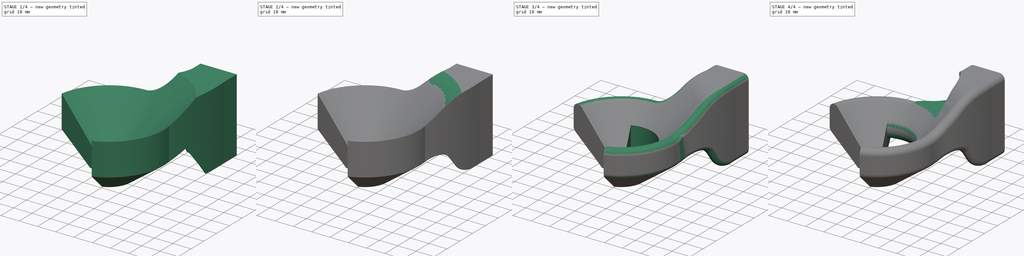
[diagram: build sequence overview — one tinted view per stage of 4, left to right]
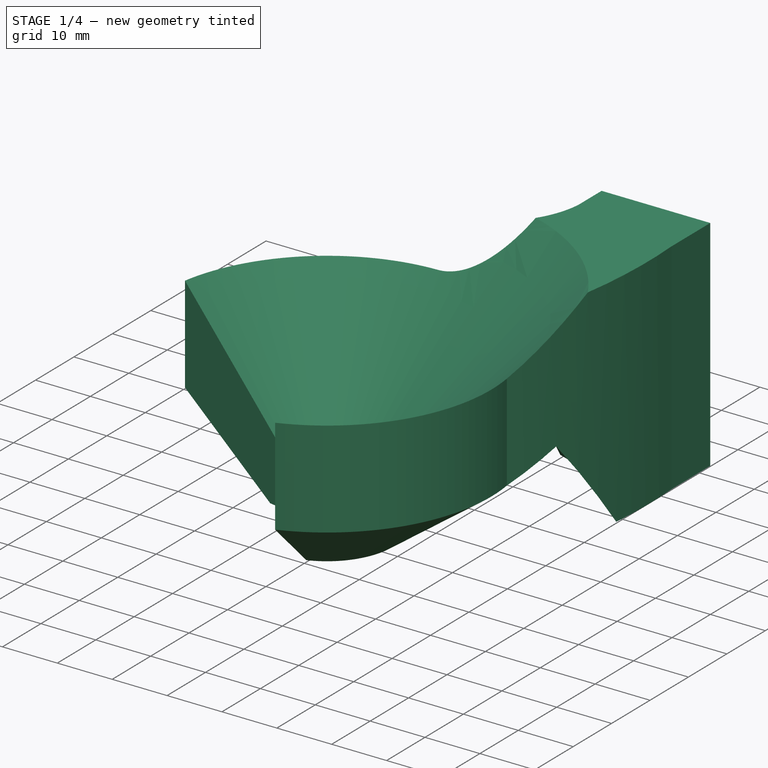
[diagram: stage 1 of 4 — iso view after this stage's code; geometry added in this stage tinted green]
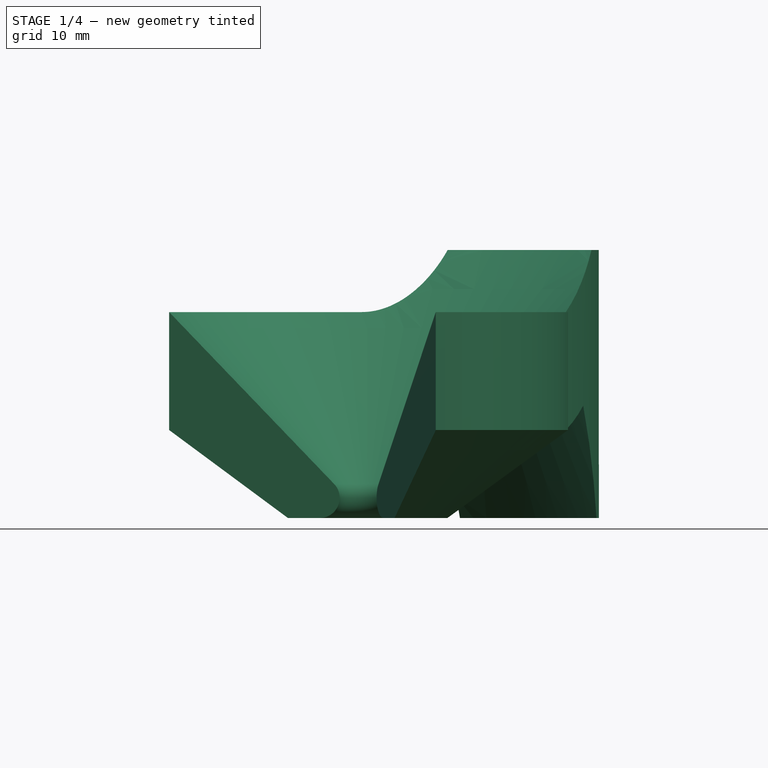
[diagram: stage 1 of 4 — front view after this stage's code; geometry added in this stage tinted green]
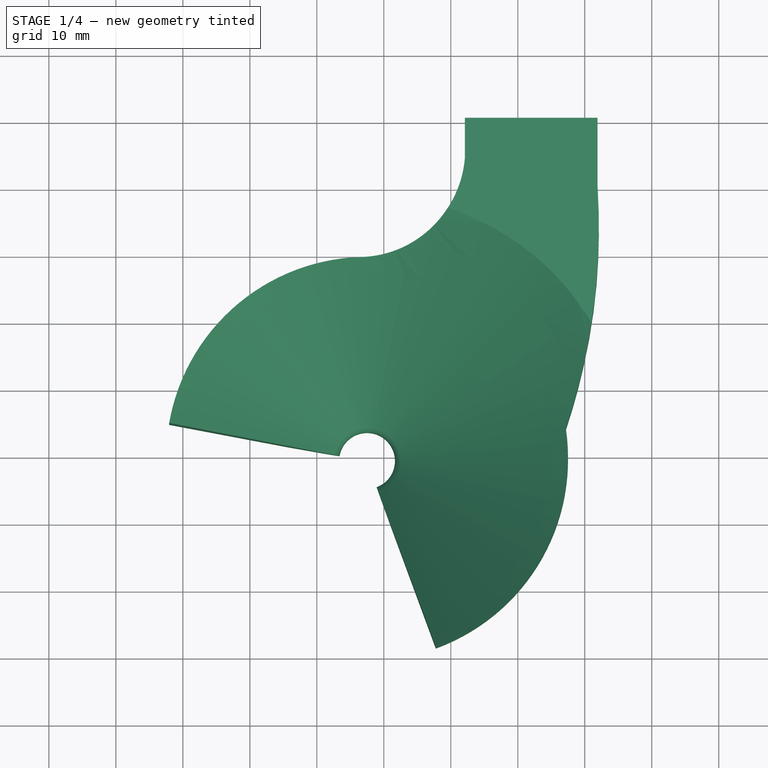
[diagram: stage 1 of 4 — top view after this stage's code; geometry added in this stage tinted green]
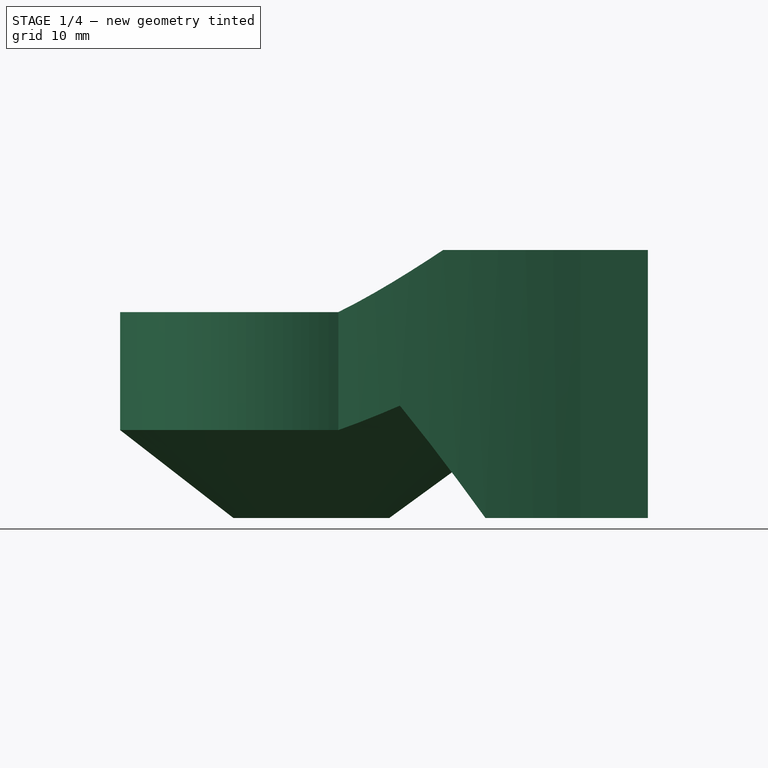
[diagram: stage 1 of 4 — right view after this stage's code; geometry added in this stage tinted green]
FCSTD DOCUMENT  (FreeCAD 0.19R22808 (Git))
Label: 999
License: All rights reserved
LicenseURL: http://en.wikipedia.org/wiki/All_rights_reserved
objects: Sketcher::SketchObject×10, PartDesign::Fillet×8, App::DocumentObjectGroup×2, PartDesign::Pocket×2, PartDesign::CoordinateSystem×1, App::FeaturePython×1, PartDesign::Line×1, PartDesign::Pad×1, PartDesign::Groove×1, PartDesign::Body×1, App::Part×1
note: 37 computed .brp shape members not serialized (recipe doc carries the construction recipe); baked Part::Feature solids carry a one-line shape summary decoded from their .brp

FEATURE [App::DocumentObjectGroup] Parts
FEATURE [PartDesign::CoordinateSystem] LCS_Origin
  AttacherType = Attacher::AttachEngine3D
  MapMode = 2
  Support = -> [X_Axis]
FEATURE [App::DocumentObjectGroup] Constraints
FEATURE [App::FeaturePython] Variables  # WARN: FeaturePython — macro-defined, semantics opaque (R4)
FEATURE [PartDesign::Line] DatumLine
  AttacherType = Attacher::AttachEngineLine
  Length = 20
  Placement = pos=(-12.5,-70.5,0) rot=(0,0,1;0rad)
  ResizeMode = 0
FEATURE [Sketcher::SketchObject] Sketch049  label="START_SUP"
  AttachmentOffset = pos=(0,0,19.9) rot=(0,0,1;0rad)
  MapMode = 5
  Placement = pos=(0,-19.9,-4.4e-15) rot=(1,0,0;1.5708rad)
  Support = -> [XZ_Plane005]
  sketch-geometry (16):
    g0: LineSegment StartX=5.1 StartY=-2 StartZ=0 EndX=18.9 EndY=-2 EndZ=0
    g1: LineSegment StartX=19.9 StartY=-3 StartZ=0 EndX=19.9 EndY=-37 EndZ=0
    g2: LineSegment StartX=18.9 StartY=-38 StartZ=0 EndX=5.1 EndY=-38 EndZ=0
    g3: LineSegment StartX=4.1 StartY=-37 StartZ=0 EndX=4.1 EndY=-3 EndZ=0
    g4: LineSegment StartX=6.2 StartY=-3.1 StartZ=0 EndX=17.8 EndY=-3.1 EndZ=0
    g5: LineSegment StartX=18.8 StartY=-4.1 StartZ=0 EndX=18.8 EndY=-35.9 EndZ=0
    g6: LineSegment StartX=17.8 StartY=-36.9 StartZ=0 EndX=6.2 EndY=-36.9 EndZ=0
    g7: LineSegment StartX=5.2 StartY=-35.9 StartZ=0 EndX=5.2 EndY=-4.1 EndZ=0
    g8: ArcOfCircle CenterX=5.1 CenterY=-37 CenterZ=0 NormalX=0 NormalY=0 NormalZ=1 AngleXU=0 Radius=1 StartAngle=3.14159 EndAngle=4.71239
    g9: ArcOfCircle CenterX=6.2 CenterY=-35.9 CenterZ=0 NormalX=0 NormalY=0 NormalZ=1 AngleXU=0 Radius=1 StartAngle=3.14159 EndAngle=4.71239
    g10: ArcOfCircle CenterX=17.8 CenterY=-35.9 CenterZ=0 NormalX=0 NormalY=0 NormalZ=1 AngleXU=0 Radius=1 StartAngle=4.71239 EndAngle=6.28319
    g11: ArcOfCircle CenterX=18.9 CenterY=-37 CenterZ=0 NormalX=0 NormalY=0 NormalZ=1 AngleXU=0 Radius=1 StartAngle=4.71239 EndAngle=6.28319
    g12: ArcOfCircle CenterX=5.1 CenterY=-3 CenterZ=0 NormalX=0 NormalY=0 NormalZ=1 AngleXU=0 Radius=1 StartAngle=1.5708 EndAngle=3.14159
    g13: ArcOfCircle CenterX=18.9 CenterY=-3 CenterZ=0 NormalX=0 NormalY=0 NormalZ=1 AngleXU=0 Radius=1 StartAngle=0 EndAngle=1.5708
    g14: ArcOfCircle CenterX=6.2 CenterY=-4.1 CenterZ=0 NormalX=0 NormalY=0 NormalZ=1 AngleXU=0 Radius=1 StartAngle=1.5708 EndAngle=3.14159
    g15: ArcOfCircle CenterX=17.8 CenterY=-4.1 CenterZ=0 NormalX=0 NormalY=0 NormalZ=1 AngleXU=0 Radius=1 StartAngle=0 EndAngle=1.5708
  constraints (40):
    c: Horizontal(g0)
    c: Horizontal(g2)
    c: Vertical(g1)
    c: Vertical(g3)
    c: Horizontal(g4)
    c: Horizontal(g6)
    c: Vertical(g5)
    c: Vertical(g7)
    c: Tangent(g3,g8) = 1.5708
    c: Tangent(g2,g8) = 1.5708
    c: Tangent(g6,g9) = 1.5708
    c: Tangent(g7,g9) = 1.5708
    c: Tangent(g6,g10) = 1.5708
    c: Tangent(g5,g10) = 1.5708
    c: Tangent(g1,g11) = 1.5708
    c: Tangent(g2,g11) = 1.5708
    c: Tangent(g0,g12) = 1.5708
    c: Tangent(g3,g12) = 1.5708
    c: Tangent(g0,g13) = 1.5708
    c: Tangent(g1,g13) = 1.5708
    c: DistanceX(g3,g1) = 15.8
    c: DistanceX(g3) = 4.1
    c: DistanceY(g0) = -2
    c: DistanceY(g2,g0) = 36
    c: DistanceX(g3,g7) = 1.1
    c: DistanceY(g2,g6) = 1.1
    c: Tangent(g4,g14) = 1.5708
    c: Tangent(g7,g14) = 1.5708
    c: Tangent(g4,g15) = 1.5708
    c: Tangent(g5,g15) = 1.5708
    c: DistanceY(g4,g0) = 1.1
    c: DistanceX(g5,g1) = 1.1
    c: Radius(g12) = 1
    c: Equal(g12,g13)
    c: Equal(g12,g8)
    c: Equal(g12,g11)
    c: Radius(g9) = 1
    c: Equal(g9,g10)
    c: Equal(g9,g14)
    c: Equal(g9,g15)
FEATURE [Sketcher::SketchObject] Sketch050  label="START_CUT"
  AttachmentOffset = pos=(0,0,19.9) rot=(0,0,1;0rad)
  MapMode = 5
  Placement = pos=(0,-19.9,-4.4e-15) rot=(1,0,0;1.5708rad)
  Support = -> [XZ_Plane005]
  sketch-geometry (16):
    g0: LineSegment StartX=5.1 StartY=-2 StartZ=0 EndX=18.9 EndY=-2 EndZ=0
    g1: LineSegment StartX=19.9 StartY=-3 StartZ=0 EndX=19.9 EndY=-37 EndZ=0
    g2: LineSegment StartX=18.9 StartY=-38 StartZ=0 EndX=5.1 EndY=-38 EndZ=0
    g3: LineSegment StartX=4.1 StartY=-37 StartZ=0 EndX=4.1 EndY=-3 EndZ=0
    g4: LineSegment StartX=5.2 StartY=-2.1 StartZ=0 EndX=18.8 EndY=-2.1 EndZ=0
    g5: LineSegment StartX=19.8 StartY=-3.1 StartZ=0 EndX=19.8 EndY=-36.9 EndZ=0
    g6: LineSegment StartX=18.8 StartY=-37.9 StartZ=0 EndX=5.2 EndY=-37.9 EndZ=0
    g7: LineSegment StartX=4.2 StartY=-36.9 StartZ=0 EndX=4.2 EndY=-3.1 EndZ=0
    g8: ArcOfCircle CenterX=5.1 CenterY=-37 CenterZ=0 NormalX=0 NormalY=0 NormalZ=1 AngleXU=0 Radius=1 StartAngle=3.14159 EndAngle=4.71239
    g9: ArcOfCircle CenterX=5.2 CenterY=-36.9 CenterZ=0 NormalX=0 NormalY=0 NormalZ=1 AngleXU=0 Radius=1 StartAngle=3.14159 EndAngle=4.71239
    g10: ArcOfCircle CenterX=18.8 CenterY=-36.9 CenterZ=0 NormalX=0 NormalY=0 NormalZ=1 AngleXU=0 Radius=1 StartAngle=4.71239 EndAngle=6.28319
    g11: ArcOfCircle CenterX=18.9 CenterY=-37 CenterZ=0 NormalX=0 NormalY=0 NormalZ=1 AngleXU=0 Radius=1 StartAngle=4.71239 EndAngle=6.28319
    g12: ArcOfCircle CenterX=5.1 CenterY=-3 CenterZ=0 NormalX=0 NormalY=0 NormalZ=1 AngleXU=0 Radius=1 StartAngle=1.5708 EndAngle=3.14159
    g13: ArcOfCircle CenterX=18.9 CenterY=-3 CenterZ=0 NormalX=0 NormalY=0 NormalZ=1 AngleXU=0 Radius=1 StartAngle=1e-16 EndAngle=1.5708
    g14: ArcOfCircle CenterX=5.2 CenterY=-3.1 CenterZ=0 NormalX=0 NormalY=0 NormalZ=1 AngleXU=0 Radius=1 StartAngle=1.5708 EndAngle=3.14159
    g15: ArcOfCircle CenterX=18.8 CenterY=-3.1 CenterZ=0 NormalX=0 NormalY=0 NormalZ=1 AngleXU=0 Radius=1 StartAngle=0 EndAngle=1.5708
  constraints (40):
    c: Horizontal(g0)
    c: Horizontal(g2)
    c: Vertical(g1)
    c: Vertical(g3)
    c: Horizontal(g4)
    c: Horizontal(g6)
    c: Vertical(g5)
    c: Vertical(g7)
    c: Tangent(g3,g8) = 1.5708
    c: Tangent(g2,g8) = 1.5708
    c: Tangent(g6,g9) = 1.5708
    c: Tangent(g7,g9) = 1.5708
    c: Tangent(g6,g10) = 1.5708
    c: Tangent(g5,g10) = 1.5708
    c: Tangent(g1,g11) = 1.5708
    c: Tangent(g2,g11) = 1.5708
    c: Tangent(g0,g12) = 1.5708
    c: Tangent(g3,g12) = 1.5708
    c: Tangent(g0,g13) = 1.5708
    c: Tangent(g1,g13) = 1.5708
    c: DistanceX(g3,g1) = 15.8
    c: DistanceX(g3) = 4.1
    c: DistanceY(g0) = -2
    c: DistanceY(g2,g0) = 36
    c: DistanceX(g3,g7) = 0.1
    c: DistanceY(g2,g6) = 0.1
    c: Tangent(g4,g14) = 1.5708
    c: Tangent(g7,g14) = 1.5708
    c: Tangent(g4,g15) = 1.5708
    c: Tangent(g5,g15) = 1.5708
    c: DistanceY(g4,g0) = 0.1
    c: DistanceX(g5,g1) = 0.1
    c: Radius(g12) = 1
    c: Equal(g12,g13)
    c: Equal(g12,g8)
    c: Equal(g12,g11)
    c: Radius(g9) = 1
    c: Equal(g9,g10)
    c: Equal(g9,g14)
    c: Equal(g9,g15)
FEATURE [Sketcher::SketchObject] Sketch  label="START_SCREW_L"
  AttachmentOffset = pos=(0,0,5.2) rot=(0,0,1;0rad)
  MapMode = 5
  Placement = pos=(5.2,-1.2e-15,1.2e-15) rot=(0.57735,0.57735,0.57735;2.0944rad)
  Support = -> [YZ_Plane005]
  sketch-geometry (1):
    g0: Circle CenterX=-17.4 CenterY=-20 CenterZ=0 NormalX=0 NormalY=0 NormalZ=1 AngleXU=0 Radius=2.45
  constraints (3):
    c: Diameter(g0) = 4.9
    c: DistanceX(g0) = -17.4
    c: DistanceY(g0) = -20
FEATURE [Sketcher::SketchObject] Sketch051  label="START_SCREW_R"
  AttachmentOffset = pos=(0,0,18.8) rot=(0,0,1;0rad)
  MapMode = 5
  Placement = pos=(18.8,-4.2e-15,4.2e-15) rot=(0.57735,0.57735,0.57735;2.0944rad)
  Support = -> [YZ_Plane005]
  sketch-geometry (1):
    g0: Circle CenterX=-17.4 CenterY=-20 CenterZ=0 NormalX=0 NormalY=0 NormalZ=1 AngleXU=0 Radius=2.45
  constraints (3):
    c: Diameter(g0) = 4.9
    c: DistanceX(g0) = -17.4
    c: DistanceY(g0) = -20
FEATURE [Sketcher::SketchObject] Sketch052  label="START_SCREW_HOLE"
  MapMode = 5
  Placement = pos=(0,0,0) rot=(0.57735,0.57735,0.57735;2.0944rad)
  Support = -> [YZ_Plane005]
  sketch-geometry (1):
    g0: Circle CenterX=-17.4 CenterY=-20 CenterZ=0 NormalX=0 NormalY=0 NormalZ=1 AngleXU=0 Radius=1.35
  constraints (3):
    c: Diameter(g0) = 2.7
    c: DistanceX(g0) = -17.4
    c: DistanceY(g0) = -20
FEATURE [Sketcher::SketchObject] Sketch053  label="CIRCLE"
  AttachmentOffset = pos=(0,0,40) rot=(0,0,1;0rad)
  MapMode = 5
  Placement = pos=(0,0,40) rot=(0,0,1;0rad)
  Support = -> [XY_Plane005]
  sketch-geometry (3):
    g0: Circle CenterX=-12.5 CenterY=-70.5 CenterZ=0 NormalX=0 NormalY=0 NormalZ=1 AngleXU=0 Radius=13
    g1: GeomPoint X=-12.5 Y=-70.5 Z=0
    g2: GeomPoint X=-12.5 Y=-70.5 Z=0
  constraints (4):
    c: Coincident(g1,g0)
    c: DistanceX(g0) = -12.5
    c: DistanceY(g0) = -70.5
    c: Radius(g0) = 13
FEATURE [Sketcher::SketchObject] Sketch055
  AttachmentOffset = pos=(0,0,40) rot=(0,0,1;0rad)
  MapMode = 5
  Placement = pos=(0,0,40) rot=(0,0,1;0rad)
  Support = -> [XY_Plane005]
  sketch-geometry (6):
    g0: ArcOfCircle CenterX=-9.75 CenterY=-39.9 CenterZ=0 NormalX=0 NormalY=0 NormalZ=1 AngleXU=0 Radius=17.5 StartAngle=1e-16 EndAngle=1.5708
    g1: LineSegment StartX=-9.75 StartY=-22.4 StartZ=0 EndX=-46.0737 EndY=-22.4 EndZ=0
    g2: LineSegment StartX=-46.0737 StartY=-22.4 StartZ=0 EndX=-46.0737 EndY=-70.1957 EndZ=0
    g3: LineSegment StartX=7.75 StartY=-39.9 StartZ=0 EndX=7.75 EndY=-60.1957 EndZ=0
    g4: LineSegment StartX=-46.0737 StartY=-70.1957 StartZ=0 EndX=-2.25 EndY=-70.1957 EndZ=0
    g5: ArcOfCircle CenterX=-2.25 CenterY=-60.1957 CenterZ=0 NormalX=0 NormalY=0 NormalZ=1 AngleXU=0 Radius=10 StartAngle=4.71239 EndAngle=6.28319
  constraints (16):
    c: DistanceY(g0,g0) = 0
    c: Radius(g0) = 17.5
    c: DistanceX(g0,g0) = 0
    c: DistanceX(g0) = 7.75
    c: Coincident(g1,g0)
    c: Horizontal(g1)
    c: Coincident(g2,g1)
    c: Vertical(g2)
    c: DistanceY(g0) = -39.9
    c: Coincident(g3,g0)
    c: Vertical(g3)
    c: Coincident(g4,g2)
    c: Horizontal(g4)
    c: Tangent(g4,g5) = -1.5708
    c: Tangent(g3,g5) = 1.5708
    c: Radius(g5) = 10
FEATURE [Sketcher::SketchObject] Sketch056
  AttachmentOffset = pos=(0,0,40) rot=(0,0,1;0rad)
  MapMode = 5
  Placement = pos=(0,0,40) rot=(0,0,1;0rad)
  Support = -> [XY_Plane005]
  sketch-geometry (3):
    g0: LineSegment StartX=-12.5 StartY=-70.5 StartZ=0 EndX=4.24173 EndY=-73.452 EndZ=0
    g1: LineSegment StartX=-12.5 StartY=-70.5 StartZ=0 EndX=-18.3143 EndY=-54.5252 EndZ=0
    g2: ArcOfCircle CenterX=-12.5 CenterY=-70.5 CenterZ=0 NormalX=0 NormalY=0 NormalZ=1 AngleXU=0 Radius=17 StartAngle=6.10865 EndAngle=8.20305
  constraints (9):
    c: Coincident(g1,g0)
    c: Coincident(g2,g0)
    c: Radius(g2) = 17
    c: DistanceX(g0) = -12.5
    c: DistanceY(g0) = -70.5
    c: Coincident(g2,g1)
    c: Coincident(g2,g0)
    c: Angle(g0,g1) = 2.0944
    c: Angle(g0) = -0.174533
FEATURE [Sketcher::SketchObject] Sketch039  label="BASE"
  MapMode = 5
  Support = -> [XY_Plane005]
  sketch-geometry (10):
    g0: GeomPoint X=-12.5 Y=-70.5 Z=0
    g1: ArcOfCircle CenterX=-12.5 CenterY=-70.5 CenterZ=0 NormalX=0 NormalY=0 NormalZ=1 AngleXU=0 Radius=30 StartAngle=1.59812 EndAngle=2.96706
    g2: LineSegment StartX=21.9 StartY=-29.9 StartZ=0 EndX=21.9 EndY=-19.9 EndZ=0
    g3: LineSegment StartX=21.9 StartY=-19.9 StartZ=0 EndX=2.1 EndY=-19.9 EndZ=0
    g4: LineSegment StartX=2.1 StartY=-19.9 StartZ=0 EndX=2.1 EndY=-25.9 EndZ=0
    g5: LineSegment StartX=-12.5 StartY=-70.5 StartZ=0 EndX=-42.0442 EndY=-65.2906 EndZ=0
    g6: LineSegment StartX=-12.5 StartY=-70.5 StartZ=0 EndX=-2.2394 EndY=-98.6908 EndZ=0
    g7: ArcOfCircle CenterX=-71.8663 CenterY=-36.0707 CenterZ=0 NormalX=0 NormalY=0 NormalZ=1 AngleXU=0 Radius=93.9691 StartAngle=5.95792 EndAngle=6.3489
    g8: ArcOfCircle CenterX=-13.7544 CenterY=-24.6104 CenterZ=0 NormalX=0 NormalY=0 NormalZ=1 AngleXU=0 Radius=15.9067 StartAngle=4.73972 EndAngle=6.20202
    g9: ArcOfCircle CenterX=-12.5 CenterY=-70.5 CenterZ=0 NormalX=0 NormalY=0 NormalZ=1 AngleXU=0 Radius=30 StartAngle=5.06145 EndAngle=6.43039
  constraints (27):
    c: DistanceX(g0) = -12.5
    c: DistanceY(g0) = -70.5
    c: Coincident(g1,g0)
    c: Coincident(g2,g3)
    c: Horizontal(g3)
    c: Vertical(g2)
    c: DistanceX(g2) = 21.9
    c: DistanceX(g3) = 2.1
    c: DistanceY(g2) = -19.9
    c: Coincident(g4,g3)
    c: Vertical(g4)
    c: DistanceY(g4,g4) = 6
    c: Coincident(g5,g0)
    c: Coincident(g6,g0)
    c: Equal(g6,g5)
    c: Angle(g5,g6) = 2.0944
    c: Equal(g5,g6)
    c: Angle(g6) = -1.22173
    c: Radius(g1) = 30
    c: Coincident(g5,g1)
    c: Coincident(g7,g2)
    c: DistanceY(g2,g2) = 10
    c: Tangent(g1,g8) = 1.5708
    c: Coincident(g9,g0)
    c: Coincident(g9,g6)
    c: Coincident(g9,g7)
    c: Coincident(g4,g8)
FEATURE [Sketcher::SketchObject] Sketch054  label="TAPPER"
  AttachmentOffset = pos=(-70.5,40,-12.5) rot=(0,1,0;2.44346rad)
  MapMode = 5
  Placement = pos=(-12.5,-70.5,40) rot=(-0.313146,0.671543,0.671543;3.74854rad)
  Support = -> [YZ_Plane005]
  sketch-geometry (9):
    g0: LineSegment StartX=0 StartY=1 StartZ=0 EndX=40 EndY=1 EndZ=0
    g1: LineSegment StartX=40 StartY=1 StartZ=0 EndX=0 EndY=-40.05 EndZ=0
    g2: LineSegment StartX=0 StartY=-40.05 StartZ=0 EndX=0 EndY=1 EndZ=0
    g3: LineSegment StartX=0 StartY=-48.75 StartZ=0 EndX=35 EndY=-23.2292 EndZ=0
    g4: LineSegment StartX=47.5016 StartY=-48.75 StartZ=0 EndX=0 EndY=-48.75 EndZ=0
    g5: GeomPoint X=0 Y=-44.4 Z=0
    g6: LineSegment StartX=35 StartY=-23.2292 StartZ=0 EndX=47.5016 EndY=-48.75 EndZ=0
    g7: GeomPoint X=13 Y=-26.7087 Z=0
    g8: GeomPoint X=12 Y=-40 Z=0
  constraints (23):
    c: Coincident(g1,g2)
    c: Coincident(g2,g0)
    c: Horizontal(g0)
    c: Vertical(g2)
    c: DistanceX(g0) = 0
    c: Coincident(g4,g3)
    c: Horizontal(g4)
    c: DistanceY(g5) = -44.4
    c: Coincident(g0,g1)
    c: Symmetric(g3,g1,g5)
    c: DistanceY(g3,g2) = 8.7
    c: PointOnObject(g5,g-2)
    c: DistanceX(g0,g0) = 40
    c: Coincident(g6,g3)
    c: Coincident(g6,g4)
    c: Angle(g3,g6) = 1.39626
    c: DistanceY(g0) = 1
    c: PointOnObject(g7,g1)
    c: PointOnObject(g8,g3)
    c: DistanceY(g8) = -40
    c: DistanceX(g7) = 13
    c: DistanceX(g7,g8) = -1
    c: DistanceX(g3) = 35
FEATURE [PartDesign::Pad] Pad
  Direction = (1,1,1)
  Length = 40
  Length2 = 100
  Profile = -> Sketch039
  Type = 0
FEATURE [PartDesign::Groove] Groove
  Angle = 360
  Axis = (-2e-16,2e-16,1)
  Base = (-12.5,-70.5,40)
  BaseFeature = -> Pad
  Profile = -> Sketch054
  ReferenceAxis = -> Sketch054 [V_Axis]
FEATURE [PartDesign::Fillet] Fillet
  Base = -> Groove [Edge21]
  BaseFeature = -> Groove
  Radius = 3
  SupportTransform = false
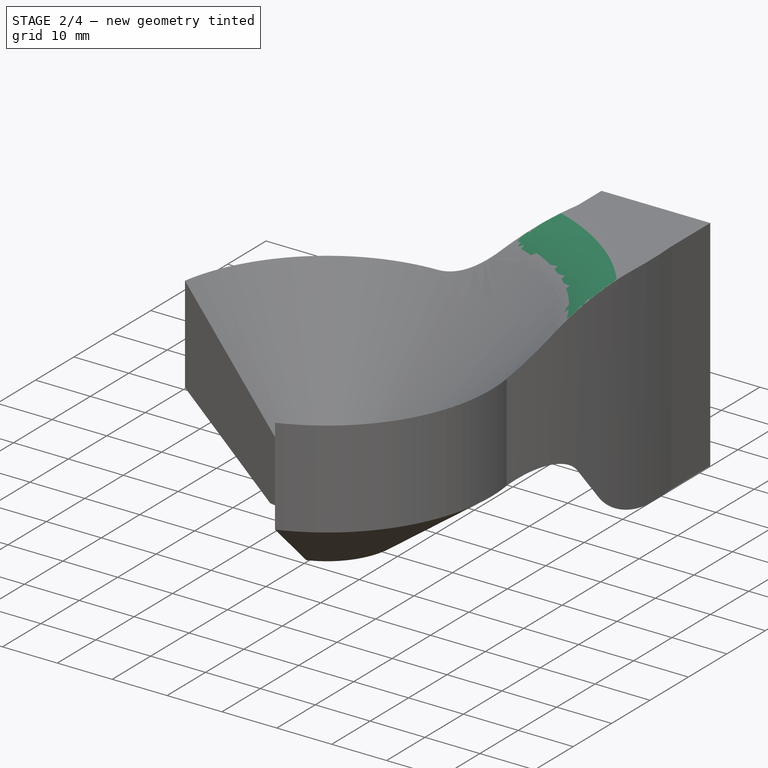
[diagram: stage 2 of 4 — iso view after this stage's code; geometry added in this stage tinted green]
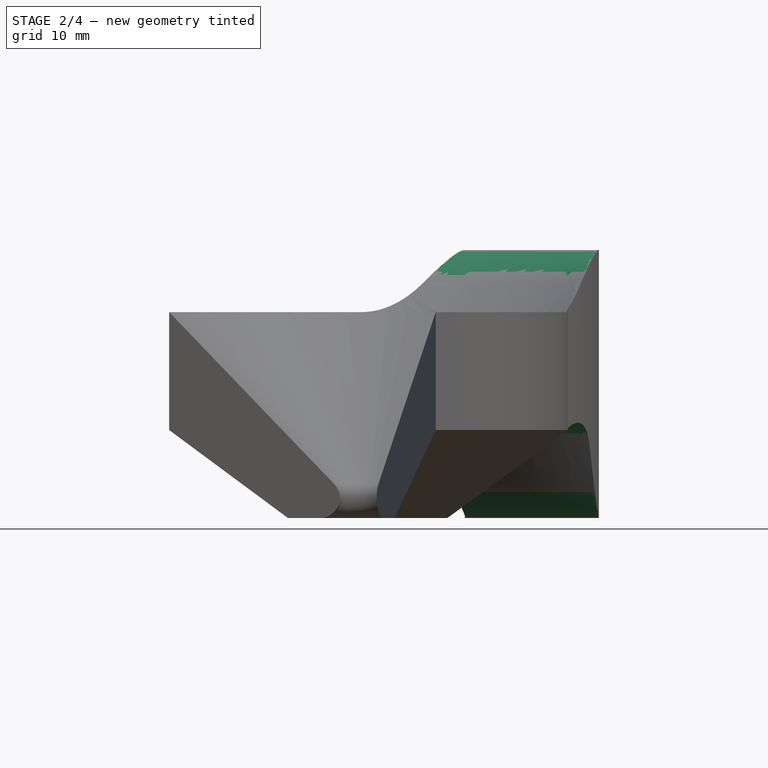
[diagram: stage 2 of 4 — front view after this stage's code; geometry added in this stage tinted green]
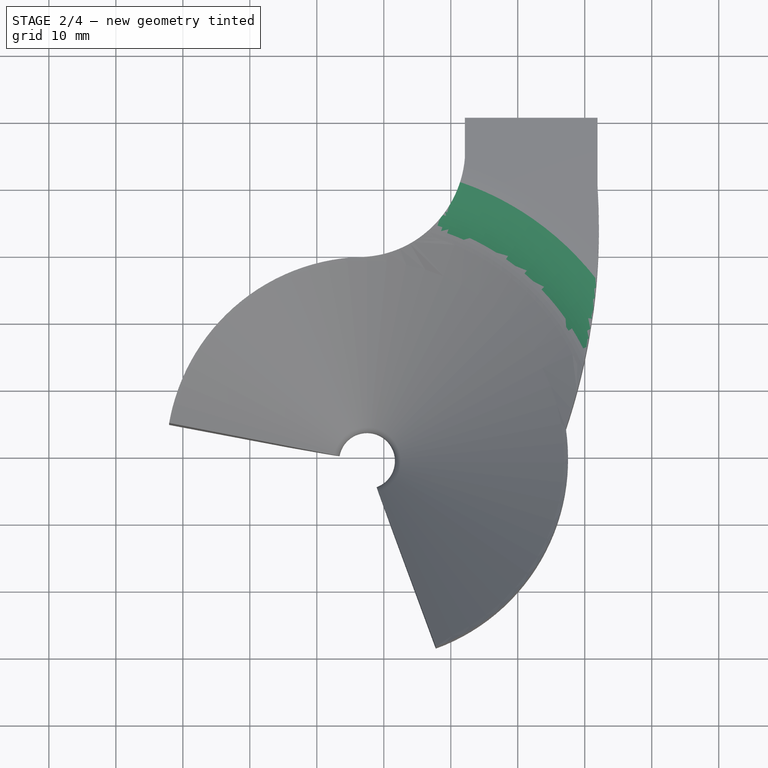
[diagram: stage 2 of 4 — top view after this stage's code; geometry added in this stage tinted green]
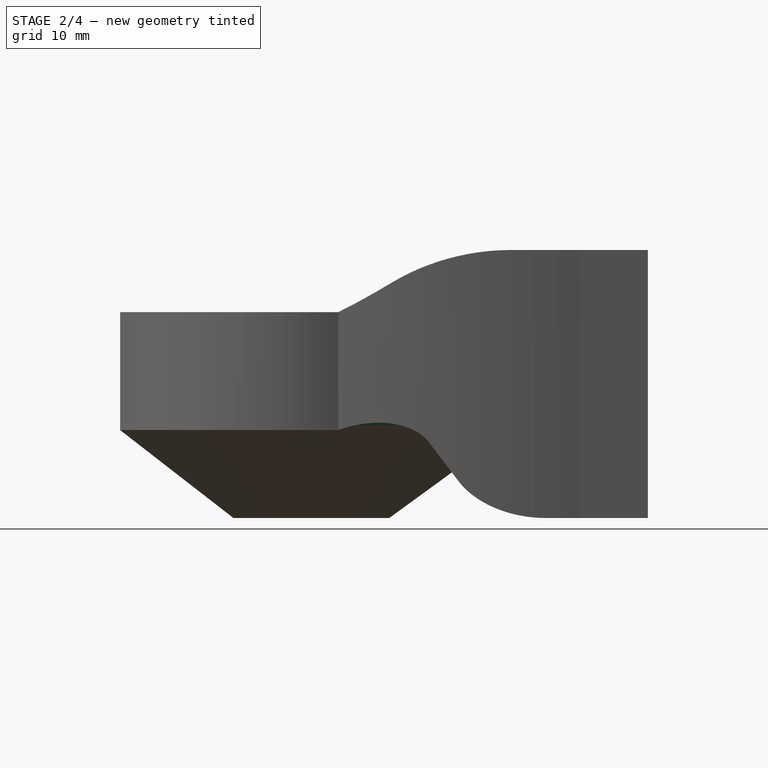
[diagram: stage 2 of 4 — right view after this stage's code; geometry added in this stage tinted green]
FEATURE [PartDesign::Fillet] Fillet001
  Base = -> Fillet [Edge28]
  BaseFeature = -> Fillet
  Radius = 10
  SupportTransform = false
FEATURE [PartDesign::Fillet] Fillet002
  Base = -> Fillet001 [Edge3]
  BaseFeature = -> Fillet001
  Radius = 5
  SupportTransform = false
FEATURE [PartDesign::Fillet] Fillet003
  Base = -> Fillet002 [Edge41]
  BaseFeature = -> Fillet002
  Radius = 16
  SupportTransform = false
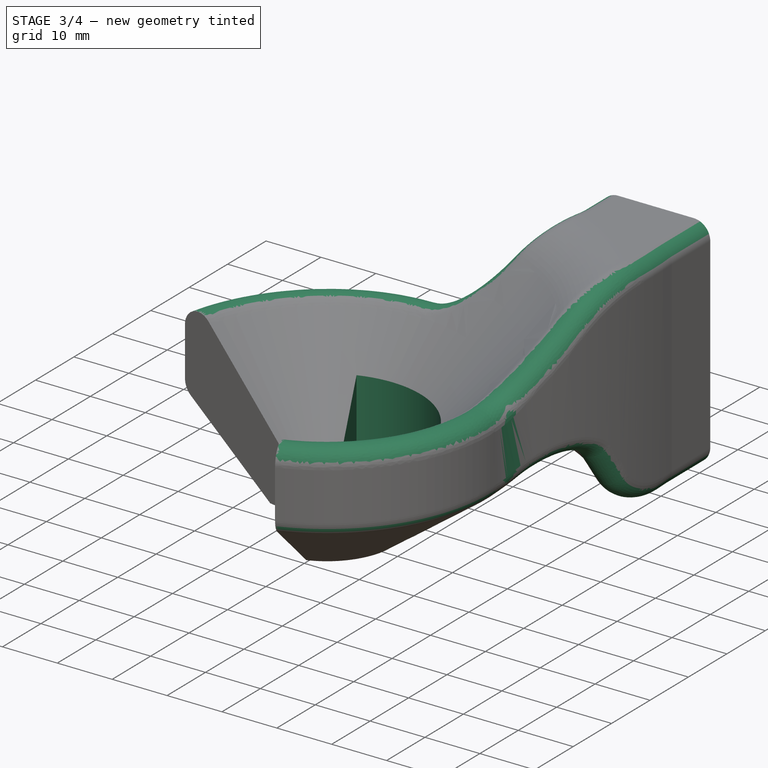
[diagram: stage 3 of 4 — iso view after this stage's code; geometry added in this stage tinted green]
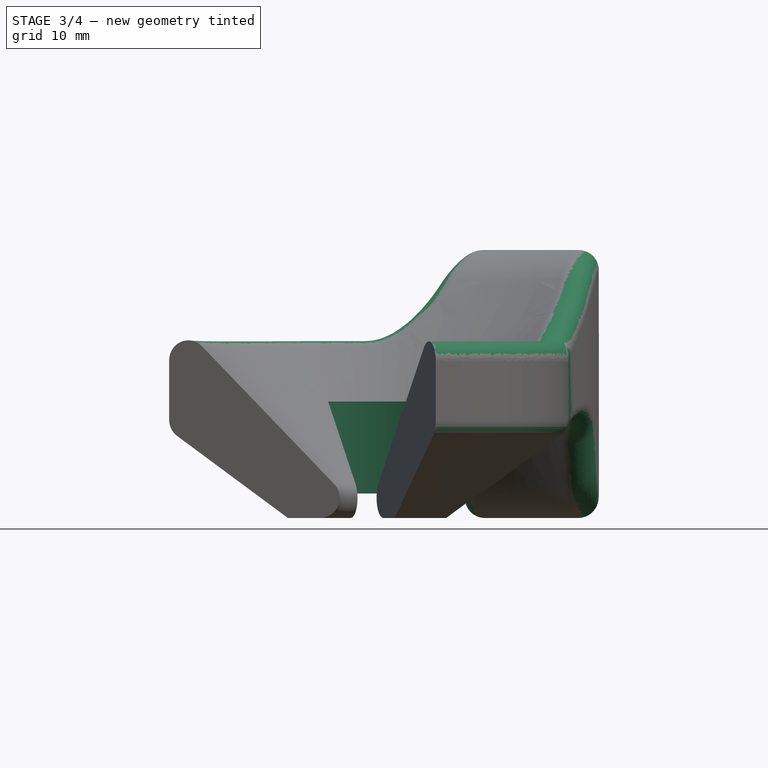
[diagram: stage 3 of 4 — front view after this stage's code; geometry added in this stage tinted green]
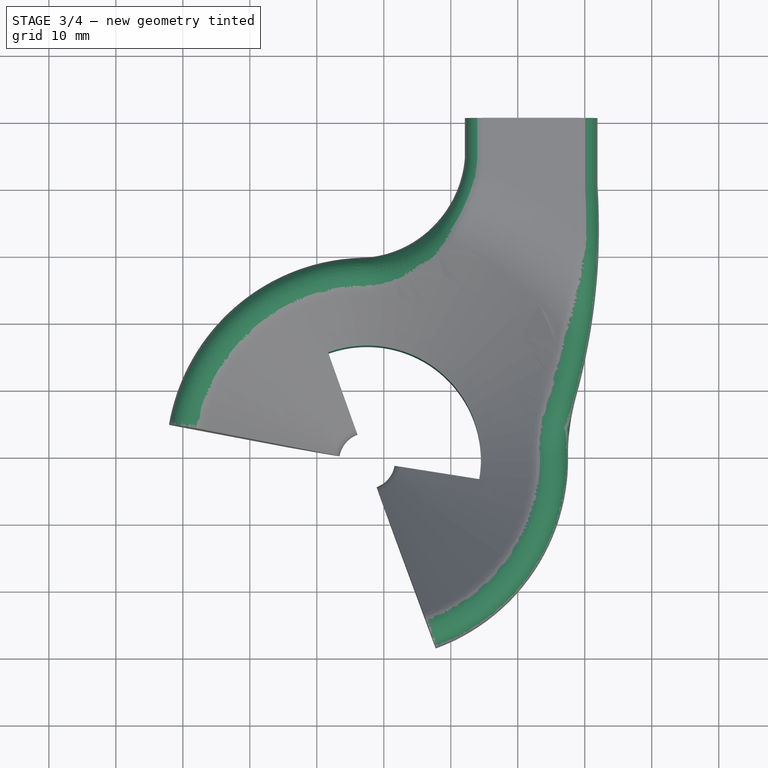
[diagram: stage 3 of 4 — top view after this stage's code; geometry added in this stage tinted green]
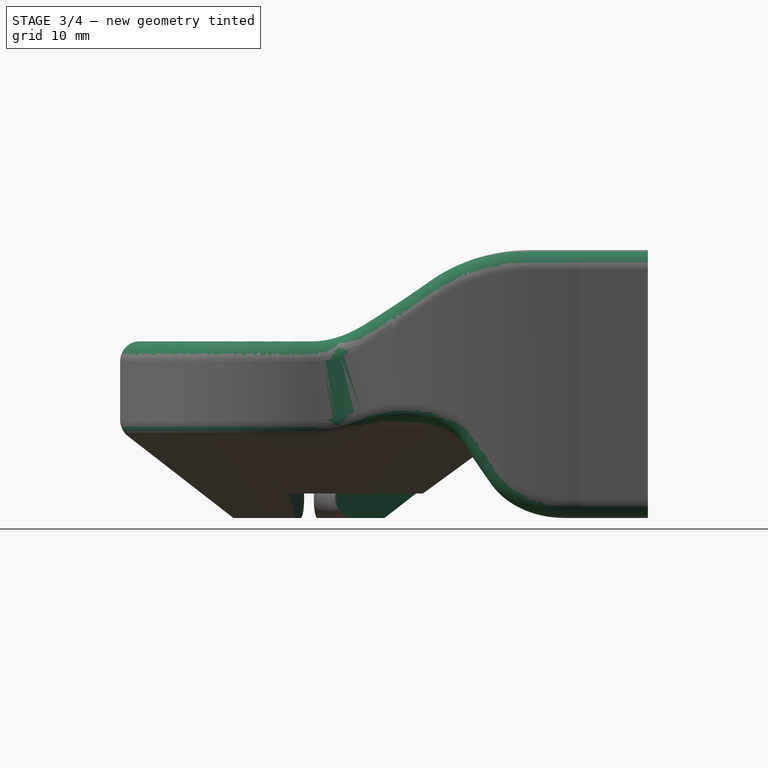
[diagram: stage 3 of 4 — right view after this stage's code; geometry added in this stage tinted green]
FEATURE [PartDesign::Fillet] Fillet004
  Base = -> Fillet003 [Edge3]
  BaseFeature = -> Fillet003
  Radius = 30
  SupportTransform = false
FEATURE [PartDesign::Fillet] Fillet005
  Base = -> Fillet004 [Edge38,Edge34,Edge12,Edge16]
  BaseFeature = -> Fillet004
  Radius = 3
  SupportTransform = false
FEATURE [PartDesign::Pocket] Pocket
  BaseFeature = -> Fillet005
  Length = 5
  Length2 = 100
  Profile = -> Sketch056
  Type = 1
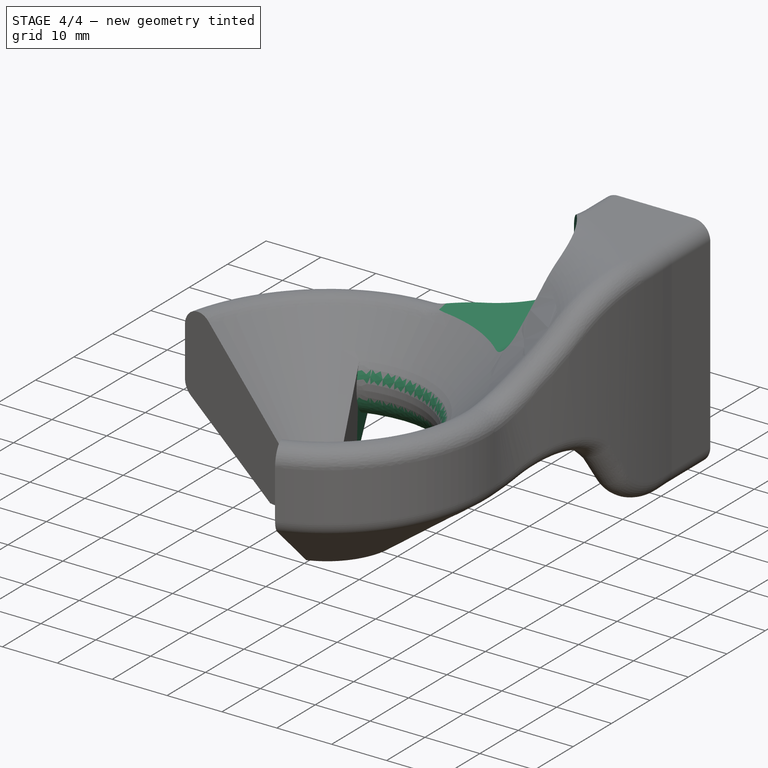
[diagram: stage 4 of 4 — iso view after this stage's code; geometry added in this stage tinted green]
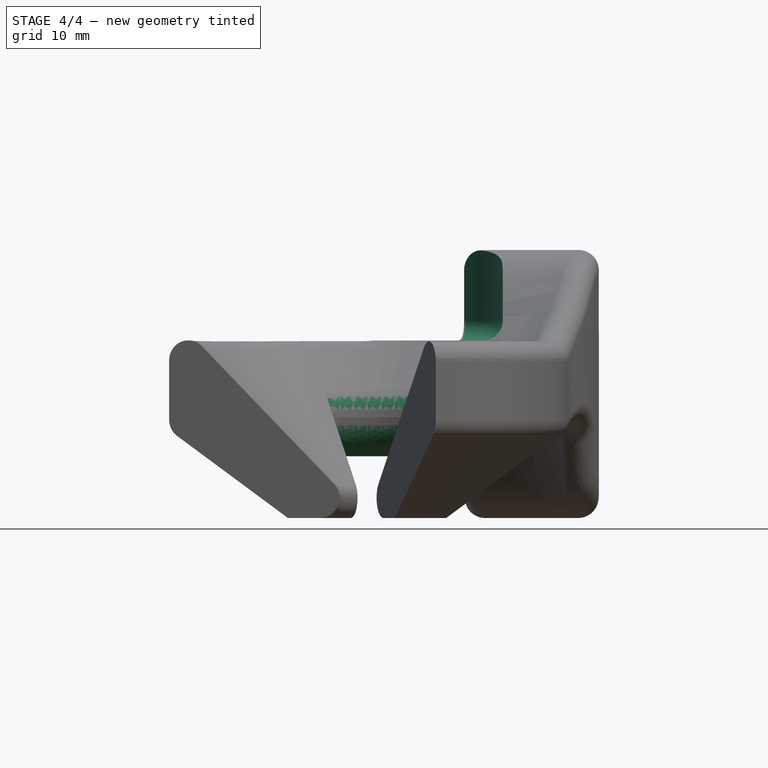
[diagram: stage 4 of 4 — front view after this stage's code; geometry added in this stage tinted green]
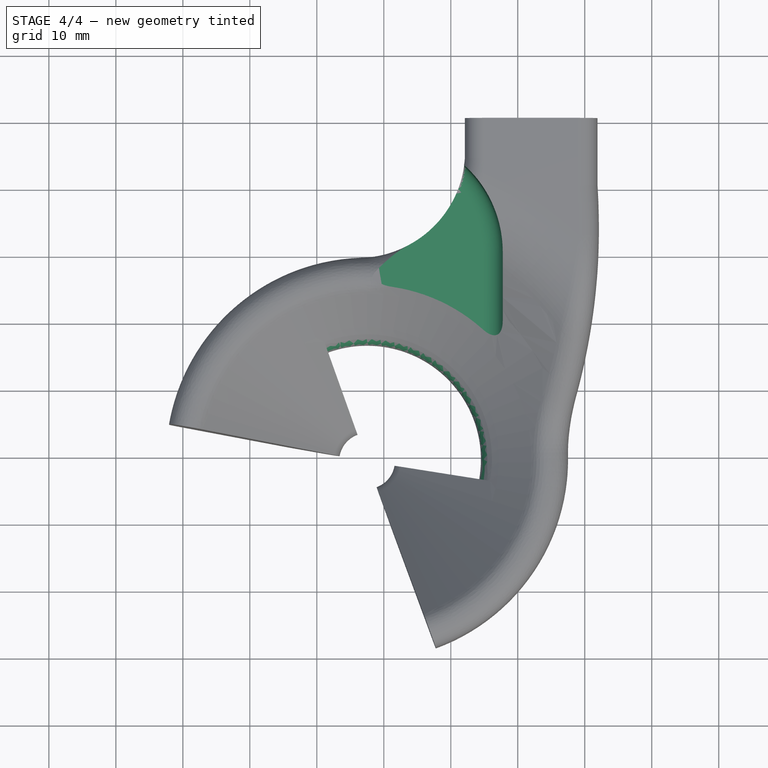
[diagram: stage 4 of 4 — top view after this stage's code; geometry added in this stage tinted green]
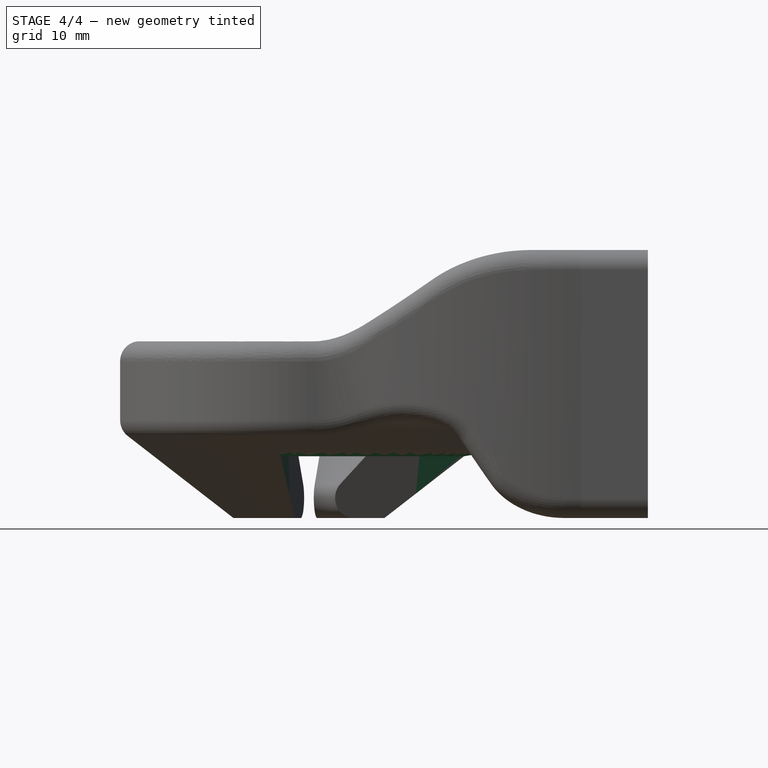
[diagram: stage 4 of 4 — right view after this stage's code; geometry added in this stage tinted green]
FEATURE [PartDesign::Pocket] Pocket001
  BaseFeature = -> Pocket
  Length = 13.5
  Length2 = 100
  Profile = -> Sketch055
  Type = 0
FEATURE [PartDesign::Fillet] Fillet006
  Base = -> Pocket001 [Edge96]
  BaseFeature = -> Pocket001
  Radius = 3
  SupportTransform = false
FEATURE [PartDesign::Fillet] Fillet007
  Base = -> Fillet006 [Edge13,Edge54]
  BaseFeature = -> Fillet006
  Radius = 5.75
  SupportTransform = false
FEATURE [PartDesign::Body] Body004  label="999"
  Group = -> [Sketch039,DatumLine,Sketch049,Sketch050,Sketch,Sketch051,Sketch052,Sketch053,Sketch054,Sketch055,Sketch056,Pad,Groove,Fillet,Fillet001,Fillet002,Fillet003,Fillet004,Fillet005,Pocket,Pocket001,Fillet006,Fillet007]
  Origin = -> Origin005
  Tip = -> Fillet007
FEATURE [App::Part] Model
  Configuration = 0
  Group = -> [LCS_Origin,Constraints,Variables,Body004]
  Origin = -> Origin
  Type = Assembly4 Model
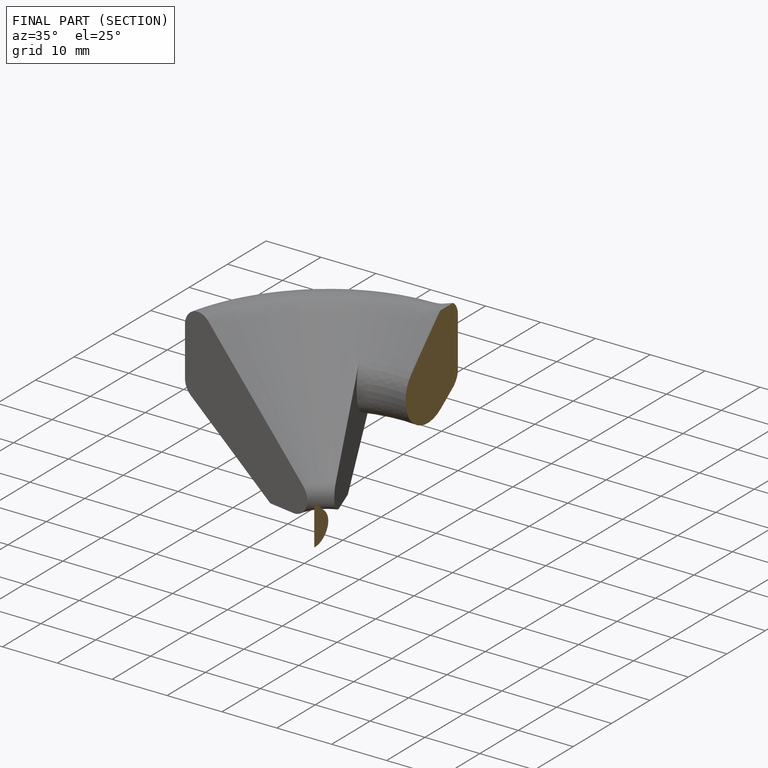
[diagram: finished part — half-section view (interior)]
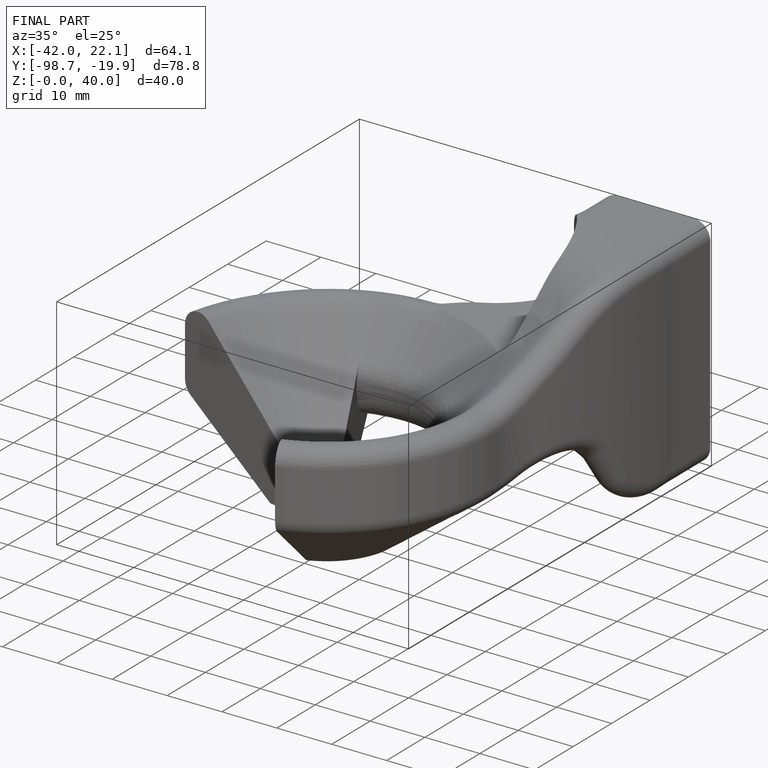
[diagram: finished part — iso view with bounding-box wireframe]
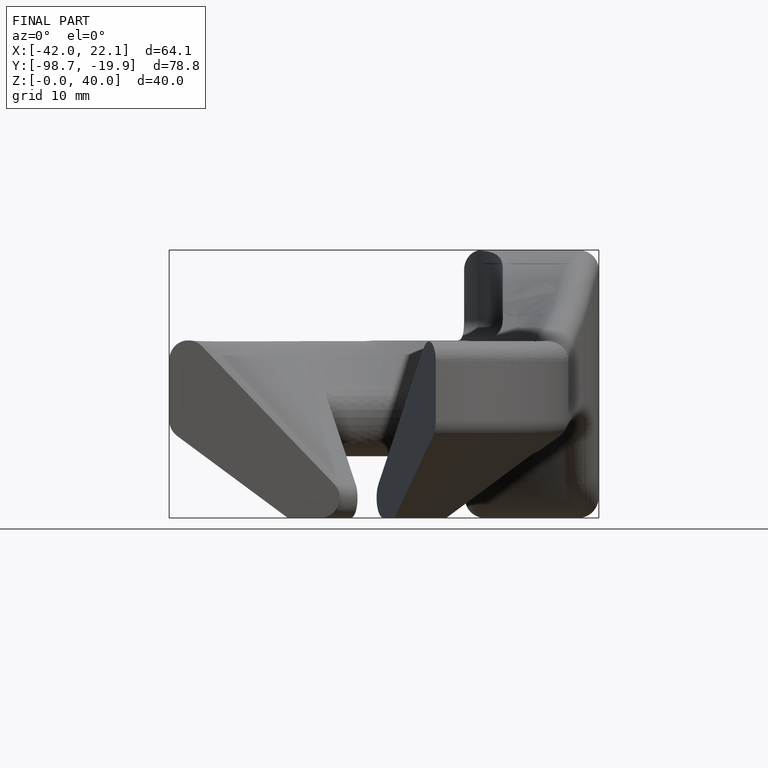
[diagram: finished part — front view with bounding-box wireframe]
